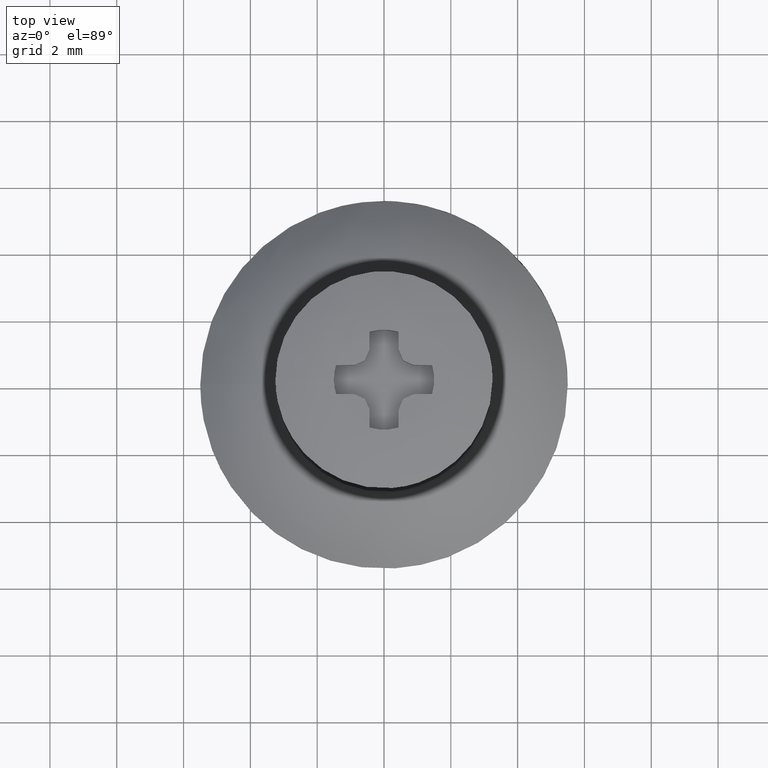
[diagram: clean part render]
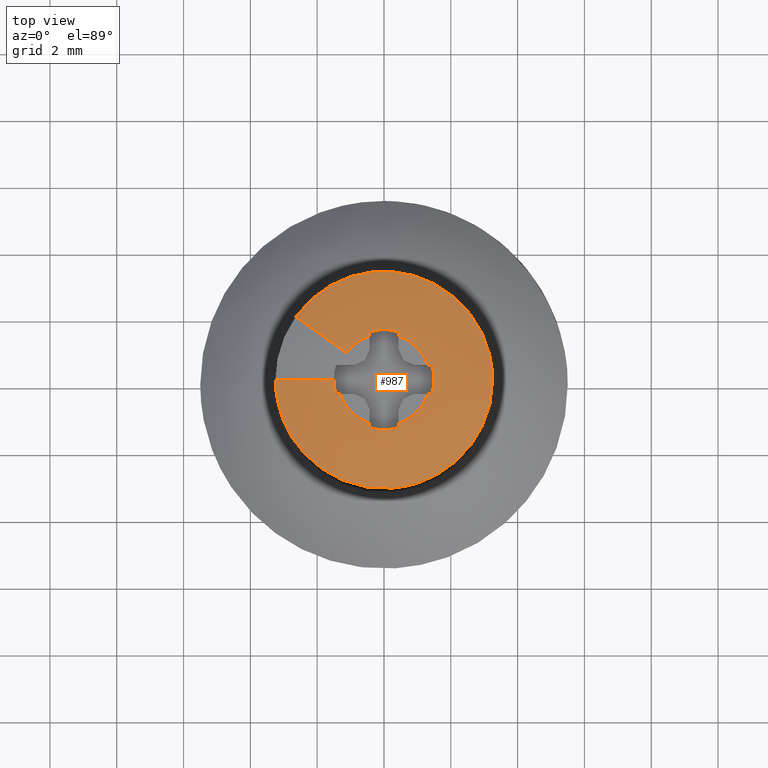
[diagram: same view with one face highlighted and labeled with its STEP entity id]
A machine part, top view. The second image highlights one B-rep face of the part: STEP entity #987.
In plain terms, the highlighted face is a freeform B-spline surface patch.
Its self-contained STEP definition (entity closure, byte-faithful):
#567=CARTESIAN_POINT('',(0.254991999125338,-3.239981299225323,-0.300000069562405));
#568=VERTEX_POINT('',#567);
#574=CARTESIAN_POINT('',(-3.022059282770379,-1.195682701108216,-0.299999985172152));
#575=VERTEX_POINT('',#574);
#576=CARTESIAN_POINT('',(0.254991999125338,-3.239981299225323,-0.300000069562405));
#577=CARTESIAN_POINT('',(0.127692788662780,-3.250000000000000,-0.299999999999983));
#578=CARTESIAN_POINT('',(0.0,-3.250000000000000,-0.299999999999983));
#579=CARTESIAN_POINT('',(-2.209265421854620,-3.250000000000000,-0.299999999999983));
#580=CARTESIAN_POINT('',(-3.022059282770379,-1.195682701108215,-0.299999985172152));
#588=(BOUNDED_CURVE()B_SPLINE_CURVE(2,(#576,#577,#578,#579,#580),.UNSPECIFIED.,.F.,.U.)B_SPLINE_CURVE_WITH_KNOTS((3,2,3),(0.736331306859014,0.750000000000000,0.937532553000254),.UNSPECIFIED.)CURVE()GEOMETRIC_REPRESENTATION_ITEM()RATIONAL_B_SPLINE_CURVE((0.969723369165518,0.983986129875853,1.0,0.780291947677805,0.890203191089167))REPRESENTATION_ITEM(''));
#589=EDGE_CURVE('',#568,#575,#588,.T.);
#641=CARTESIAN_POINT('',(-3.249999728123100,0.0,-0.299999910638386));
#642=VERTEX_POINT('',#641);
#643=CARTESIAN_POINT('',(-3.022059282770379,-1.195682701108216,-0.299999985172152));
#644=CARTESIAN_POINT('',(-3.249999779952727,-0.619568223488835,-0.299999927673957));
#645=CARTESIAN_POINT('',(-3.249999728123100,0.0,-0.299999910638386));
#653=(BOUNDED_CURVE()B_SPLINE_CURVE(2,(#643,#644,#645),.UNSPECIFIED.,.F.,.U.)B_SPLINE_CURVE_WITH_KNOTS((3,3),(0.937532553000254,1.0),.UNSPECIFIED.)CURVE()GEOMETRIC_REPRESENTATION_ITEM()RATIONAL_B_SPLINE_CURVE((0.890203191089167,0.926814833508743,1.0))REPRESENTATION_ITEM(''));
#654=EDGE_CURVE('',#575,#642,#653,.T.);
#656=CARTESIAN_POINT('',(-2.644934617158597,1.888602888644096,-0.300000000001945));
#657=VERTEX_POINT('',#656);
#671=CARTESIAN_POINT('',(3.250000000000000,0.0,-0.299999999999983));
#672=VERTEX_POINT('',#671);
#673=CARTESIAN_POINT('',(-2.644934617158597,1.888602888644096,-0.300000000001945));
#674=CARTESIAN_POINT('',(-1.672835533697993,3.250000000000001,-0.299999999999983));
#675=CARTESIAN_POINT('',(0.0,3.250000000000000,-0.299999999999983));
#676=CARTESIAN_POINT('',(3.250000000000000,3.250000000000000,-0.299999999999983));
#677=CARTESIAN_POINT('',(3.250000000000000,0.0,-0.299999999999983));
#685=(BOUNDED_CURVE()B_SPLINE_CURVE(2,(#673,#674,#675,#676,#677),.UNSPECIFIED.,.F.,.U.)B_SPLINE_CURVE_WITH_KNOTS((3,2,3),(0.100000000001970,0.250000000000000,0.500000000000000),.UNSPECIFIED.)CURVE()GEOMETRIC_REPRESENTATION_ITEM()RATIONAL_B_SPLINE_CURVE((0.859411254968620,0.824264068714236,1.0,0.707106781186547,1.0))REPRESENTATION_ITEM(''));
#686=EDGE_CURVE('',#657,#672,#685,.T.);
#688=CARTESIAN_POINT('',(3.250000000000000,0.0,-0.299999999999983));
#689=CARTESIAN_POINT('',(3.250000000000000,-3.004269207343569,-0.299999999999983));
#690=CARTESIAN_POINT('',(0.254991999125338,-3.239981299225323,-0.300000069562405));
#698=(BOUNDED_CURVE()B_SPLINE_CURVE(2,(#688,#689,#690),.UNSPECIFIED.,.F.,.U.)B_SPLINE_CURVE_WITH_KNOTS((3,3),(0.500000000000000,0.736331306859014),.UNSPECIFIED.)CURVE()GEOMETRIC_REPRESENTATION_ITEM()RATIONAL_B_SPLINE_CURVE((1.0,0.723120651310694,0.969723369165520))REPRESENTATION_ITEM(''));
#699=EDGE_CURVE('',#672,#568,#698,.T.);
#735=CARTESIAN_POINT('',(-2.719263273366485,1.941676949663910,-0.330834625188138));
#736=CARTESIAN_POINT('',(-1.905573627162713,1.360665745015791,0.015689489631601));
#737=CARTESIAN_POINT('',(-1.044503189867627,0.745822512840250,-0.000721612764717));
#738=CARTESIAN_POINT('',(-1.719845994207903,3.341332387945855,-0.330834625188138));
#739=CARTESIAN_POINT('',(-1.205213633208337,2.341499971855100,0.015689489631601));
#740=CARTESIAN_POINT('',(-0.660614455623219,1.283447752852836,-0.000721612764717));
#741=CARTESIAN_POINT('',(0.0,3.341332387945856,-0.330834625188138));
#742=CARTESIAN_POINT('',(0.0,2.341499971855101,0.015689489631602));
#743=CARTESIAN_POINT('',(0.0,1.283447752852835,-0.000721612764717));
#744=CARTESIAN_POINT('',(3.341332387945856,3.341332387945856,-0.330834625188138));
#745=CARTESIAN_POINT('',(2.341499971855101,2.341499971855101,0.015689489631601));
#746=CARTESIAN_POINT('',(1.283447752852836,1.283447752852836,-0.000721612764718));
#747=CARTESIAN_POINT('',(3.341332387945856,0.0,-0.330834625188138));
#748=CARTESIAN_POINT('',(2.341499971855101,0.0,0.015689489631602));
#749=CARTESIAN_POINT('',(1.283447752852835,0.0,-0.000721612764717));
#750=CARTESIAN_POINT('',(3.341332387945856,-3.341332387945856,-0.330834625188138));
#751=CARTESIAN_POINT('',(2.341499971855101,-2.341499971855101,0.015689489631601));
#752=CARTESIAN_POINT('',(1.283447752852836,-1.283447752852836,-0.000721612764718));
#753=CARTESIAN_POINT('',(0.0,-3.341332387945856,-0.330834625188138));
#754=CARTESIAN_POINT('',(0.0,-2.341499971855101,0.015689489631602));
#755=CARTESIAN_POINT('',(0.0,-1.283447752852835,-0.000721612764717));
#756=CARTESIAN_POINT('',(-3.341332387945856,-3.341332387945856,-0.330834625188138));
#757=CARTESIAN_POINT('',(-2.341499971855101,-2.341499971855101,0.015689489631601));
#758=CARTESIAN_POINT('',(-1.283447752852836,-1.283447752852836,-0.000721612764718));
#759=CARTESIAN_POINT('',(-3.341332387945856,0.0,-0.330834625188138));
#760=CARTESIAN_POINT('',(-2.341499971855101,0.0,0.015689489631602));
#761=CARTESIAN_POINT('',(-1.283447752852835,0.0,-0.000721612764717));
#769=(BOUNDED_SURFACE()B_SPLINE_SURFACE(2,2,((#735,#738,#741,#744,#747,#750,#753,#756,#759),(#736,#739,#742,#745,#748,#751,#754,#757,#760),(#737,#740,#743,#746,#749,#752,#755,#758,#761)),.UNSPECIFIED.,.F.,.F.,.U.)B_SPLINE_SURFACE_WITH_KNOTS((3,3),(3,2,2,2,3),(0.0,2.123034379589548),(0.0,3.321660426563037,8.857761192497652,14.393861958432270,19.929962724366881),.UNSPECIFIED.)GEOMETRIC_REPRESENTATION_ITEM()RATIONAL_B_SPLINE_SURFACE(((0.784422160121828,0.752341791483205,0.912743644237016,0.645407220324915,0.912743644237016,0.645407220324915,0.912743644237016,0.645407220324915,0.912743644237016),(0.786896380859817,0.754714824471277,0.915622616004831,0.647442960784782,0.915622616004831,0.647442960784782,0.915622616004831,0.647442960784782,0.915622616004831),(0.813931227812670,0.780644032266508,0.947080019917673,0.669686704410077,0.947080019917673,0.669686704410077,0.947080019917673,0.669686704410077,0.947080019917673)))REPRESENTATION_ITEM('')SURFACE());
#770=CARTESIAN_POINT('',(-1.120232027321515,0.799896310912755,-2.052101E-016));
#771=VERTEX_POINT('',#770);
#772=CARTESIAN_POINT('',(-0.432604818937696,1.306754366265934,0.0));
#773=VERTEX_POINT('',#772);
#774=CARTESIAN_POINT('',(-1.120232027321515,0.799896310912755,-2.052101E-016));
#775=CARTESIAN_POINT('',(-0.859139633923936,1.165548779989596,0.0));
#776=CARTESIAN_POINT('',(-0.432604818937696,1.306754366265934,0.0));
#784=(BOUNDED_CURVE()B_SPLINE_CURVE(2,(#774,#775,#776),.UNSPECIFIED.,.F.,.U.)B_SPLINE_CURVE_WITH_KNOTS((3,3),(0.325338633241159,1.0),.UNSPECIFIED.)CURVE()GEOMETRIC_REPRESENTATION_ITEM()RATIONAL_B_SPLINE_CURVE((0.953250898370830,0.928153165882213,1.0))REPRESENTATION_ITEM(''));
#785=EDGE_CURVE('',#771,#773,#784,.T.);
#786=ORIENTED_EDGE('',*,*,#785,.T.);
#787=CARTESIAN_POINT('',(-0.430332313739177,1.436946101895224,-0.001271143123871));
#788=VERTEX_POINT('',#787);
#789=CARTESIAN_POINT('',(-0.430332313739177,1.436946101895224,-0.001271143123871));
#790=CARTESIAN_POINT('',(-0.431089969030884,1.393540059303572,-0.000419556474608));
#791=CARTESIAN_POINT('',(-0.431847469271500,1.350142899583420,-1.142883E-016));
#792=CARTESIAN_POINT('',(-0.432604818937697,1.306754366265934,-1.111727E-016));
#793=QUASI_UNIFORM_CURVE('',3,(#789,#790,#791,#792),.UNSPECIFIED.,.F.,.U.);
#794=EDGE_CURVE('',#788,#773,#793,.T.);
#795=ORIENTED_EDGE('',*,*,#794,.F.);
#796=CARTESIAN_POINT('',(0.430332313739197,1.436946101895224,-0.001271143123871));
#797=VERTEX_POINT('',#796);
#798=CARTESIAN_POINT('',(-0.430332313739177,1.436946101895224,-0.001271143123871));
#799=CARTESIAN_POINT('',(1.008308E-014,1.565820734008338,-0.001271143123876));
#800=CARTESIAN_POINT('',(0.430332313739197,1.436946101895224,-0.001271143123871));
#808=(BOUNDED_CURVE()B_SPLINE_CURVE(2,(#798,#799,#800),.UNSPECIFIED.,.F.,.U.)CURVE()GEOMETRIC_REPRESENTATION_ITEM()QUASI_UNIFORM_CURVE()RATIONAL_B_SPLINE_CURVE((1.0,0.957964067930149,1.0))REPRESENTATION_ITEM(''));
#809=EDGE_CURVE('',#788,#797,#808,.T.);
#810=ORIENTED_EDGE('',*,*,#809,.T.);
#811=CARTESIAN_POINT('',(0.432604818937737,1.306754366265920,0.0));
#812=VERTEX_POINT('',#811);
#813=CARTESIAN_POINT('',(0.432604818937737,1.306754366265920,-3.301307E-016));
#814=CARTESIAN_POINT('',(0.431847469271537,1.350142899583410,-3.270151E-016));
#815=CARTESIAN_POINT('',(0.431089969030919,1.393540059303567,-0.000419556474608));
#816=CARTESIAN_POINT('',(0.430332313739197,1.436946101895224,-0.001271143123871));
#817=QUASI_UNIFORM_CURVE('',3,(#813,#814,#815,#816),.UNSPECIFIED.,.F.,.U.);
#818=EDGE_CURVE('',#812,#797,#817,.T.);
#819=ORIENTED_EDGE('',*,*,#818,.F.);
#820=CARTESIAN_POINT('',(1.306754366265966,0.432604818937595,0.0));
#821=VERTEX_POINT('',#820);
#822=CARTESIAN_POINT('',(0.432604818937737,1.306754366265921,0.0));
#823=CARTESIAN_POINT('',(1.089340211752469,1.089340211752351,0.0));
#824=CARTESIAN_POINT('',(1.306754366265967,0.432604818937595,0.0));
#832=(BOUNDED_CURVE()B_SPLINE_CURVE(2,(#822,#823,#824),.UNSPECIFIED.,.F.,.U.)CURVE()GEOMETRIC_REPRESENTATION_ITEM()QUASI_UNIFORM_CURVE()RATIONAL_B_SPLINE_CURVE((1.0,0.893506820372794,1.0))REPRESENTATION_ITEM(''));
#833=EDGE_CURVE('',#812,#821,#832,.T.);
#834=ORIENTED_EDGE('',*,*,#833,.T.);
#835=CARTESIAN_POINT('',(1.436946101895210,0.430332313739101,-0.001271143123871));
#836=VERTEX_POINT('',#835);
#837=CARTESIAN_POINT('',(1.436946101895210,0.430332313739101,-0.001271143123871));
#838=CARTESIAN_POINT('',(1.393540059303573,0.431089969030804,-0.000419556474609));
#839=CARTESIAN_POINT('',(1.350142899583436,0.431847469271409,-2.067114E-016));
#840=CARTESIAN_POINT('',(1.306754366265966,0.432604818937595,-2.145107E-016));
#841=QUASI_UNIFORM_CURVE('',3,(#837,#838,#839,#840),.UNSPECIFIED.,.F.,.U.);
#842=EDGE_CURVE('',#836,#821,#841,.T.);
#843=ORIENTED_EDGE('',*,*,#842,.F.);
#844=CARTESIAN_POINT('',(1.436946101895156,-0.430332313739443,-0.001271143123871));
#845=VERTEX_POINT('',#844);
#846=CARTESIAN_POINT('',(1.436946101895210,0.430332313739101,-0.001271143123871));
#847=CARTESIAN_POINT('',(1.565820734008368,-1.792728E-013,-0.001271143123876));
#848=CARTESIAN_POINT('',(1.436946101895156,-0.430332313739443,-0.001271143123871));
#856=(BOUNDED_CURVE()B_SPLINE_CURVE(2,(#846,#847,#848),.UNSPECIFIED.,.F.,.U.)CURVE()GEOMETRIC_REPRESENTATION_ITEM()QUASI_UNIFORM_CURVE()RATIONAL_B_SPLINE_CURVE((1.0,0.957964067930131,1.0))REPRESENTATION_ITEM(''));
#857=EDGE_CURVE('',#836,#845,#856,.T.);
#858=ORIENTED_EDGE('',*,*,#857,.T.);
#859=CARTESIAN_POINT('',(1.306754366265894,-0.432604818937817,0.0));
#860=VERTEX_POINT('',#859);
#861=CARTESIAN_POINT('',(1.306754366265894,-0.432604818937818,-4.103871E-016));
#862=CARTESIAN_POINT('',(1.350142899583370,-0.431847469271624,-4.135095E-016));
#863=CARTESIAN_POINT('',(1.393540059303511,-0.431089969031012,-0.000419556474608));
#864=CARTESIAN_POINT('',(1.436946101895156,-0.430332313739443,-0.001271143123871));
#865=QUASI_UNIFORM_CURVE('',3,(#861,#862,#863,#864),.UNSPECIFIED.,.F.,.U.);
#866=EDGE_CURVE('',#860,#845,#865,.T.);
#867=ORIENTED_EDGE('',*,*,#866,.F.);
#868=CARTESIAN_POINT('',(0.432604818937582,-1.306754366265972,0.0));
#869=VERTEX_POINT('',#868);
#870=CARTESIAN_POINT('',(1.306754366265894,-0.432604818937817,0.0));
#871=CARTESIAN_POINT('',(1.089340211752298,-1.089340211752494,0.0));
#872=CARTESIAN_POINT('',(0.432604818937582,-1.306754366265972,0.0));
#880=(BOUNDED_CURVE()B_SPLINE_CURVE(2,(#870,#871,#872),.UNSPECIFIED.,.F.,.U.)CURVE()GEOMETRIC_REPRESENTATION_ITEM()QUASI_UNIFORM_CURVE()RATIONAL_B_SPLINE_CURVE((1.0,0.893506820372806,1.0))REPRESENTATION_ITEM(''));
#881=EDGE_CURVE('',#860,#869,#880,.T.);
#882=ORIENTED_EDGE('',*,*,#881,.T.);
#883=CARTESIAN_POINT('',(0.430332313739062,-1.436946101895302,-0.001271143123871));
#884=VERTEX_POINT('',#883);
#885=CARTESIAN_POINT('',(0.430332313739061,-1.436946101895302,-0.001271143123869));
#886=CARTESIAN_POINT('',(0.431089969030773,-1.393540059303636,-0.000419556474609));
#887=CARTESIAN_POINT('',(0.431847469271387,-1.350142899583471,4.997534E-017));
#888=CARTESIAN_POINT('',(0.432604818937581,-1.306754366265972,4.997534E-017));
#889=QUASI_UNIFORM_CURVE('',3,(#885,#886,#887,#888),.UNSPECIFIED.,.F.,.U.);
#890=EDGE_CURVE('',#884,#869,#889,.T.);
#891=ORIENTED_EDGE('',*,*,#890,.F.);
#892=CARTESIAN_POINT('',(-0.430332313739346,-1.436946101895172,-0.001271143123871));
#893=VERTEX_POINT('',#892);
#894=CARTESIAN_POINT('',(0.430332313739062,-1.436946101895302,-0.001271143123871));
#895=CARTESIAN_POINT('',(-1.611124E-013,-1.565820734008342,-0.001271143123876));
#896=CARTESIAN_POINT('',(-0.430332313739346,-1.436946101895172,-0.001271143123871));
#904=(BOUNDED_CURVE()B_SPLINE_CURVE(2,(#894,#895,#896),.UNSPECIFIED.,.F.,.U.)CURVE()GEOMETRIC_REPRESENTATION_ITEM()QUASI_UNIFORM_CURVE()RATIONAL_B_SPLINE_CURVE((1.0,0.957964067930147,1.0))REPRESENTATION_ITEM(''));
#905=EDGE_CURVE('',#884,#893,#904,.T.);
#906=ORIENTED_EDGE('',*,*,#905,.T.);
#907=CARTESIAN_POINT('',(-0.432604818937695,-1.306754366265934,0.0));
#908=VERTEX_POINT('',#907);
#909=CARTESIAN_POINT('',(-0.432604818937695,-1.306754366265934,-6.670345E-017));
#910=CARTESIAN_POINT('',(-0.431847469271498,-1.350142899583401,-6.514222E-017));
#911=CARTESIAN_POINT('',(-0.431089969030883,-1.393540059303535,-0.000419556474609));
#912=CARTESIAN_POINT('',(-0.430332313739346,-1.436946101895172,-0.001271143123871));
#913=QUASI_UNIFORM_CURVE('',3,(#909,#910,#911,#912),.UNSPECIFIED.,.F.,.U.);
#914=EDGE_CURVE('',#908,#893,#913,.T.);
#915=ORIENTED_EDGE('',*,*,#914,.F.);
#916=CARTESIAN_POINT('',(-1.306754366265968,-0.432604818937596,0.0));
#917=VERTEX_POINT('',#916);
#918=CARTESIAN_POINT('',(-0.432604818937695,-1.306754366265934,0.0));
#919=CARTESIAN_POINT('',(-1.089340211752460,-1.089340211752377,0.0));
#920=CARTESIAN_POINT('',(-1.306754366265967,-0.432604818937596,0.0));
#928=(BOUNDED_CURVE()B_SPLINE_CURVE(2,(#918,#919,#920),.UNSPECIFIED.,.F.,.U.)CURVE()GEOMETRIC_REPRESENTATION_ITEM()QUASI_UNIFORM_CURVE()RATIONAL_B_SPLINE_CURVE((1.0,0.893506820372787,1.0))REPRESENTATION_ITEM(''));
#929=EDGE_CURVE('',#908,#917,#928,.T.);
#930=ORIENTED_EDGE('',*,*,#929,.T.);
#931=CARTESIAN_POINT('',(-1.436946101895280,-0.430332313739101,-0.001271143123871));
#932=VERTEX_POINT('',#931);
#933=CARTESIAN_POINT('',(-1.436946101895280,-0.430332313739101,-0.001271143123869));
#934=CARTESIAN_POINT('',(-1.393540059303621,-0.431089969030804,-0.000419556474609));
#935=CARTESIAN_POINT('',(-1.350142899583461,-0.431847469271410,-8.698961E-017));
#936=CARTESIAN_POINT('',(-1.306754366265968,-0.432604818937596,-7.919718E-017));
#937=QUASI_UNIFORM_CURVE('',3,(#933,#934,#935,#936),.UNSPECIFIED.,.F.,.U.);
#938=EDGE_CURVE('',#932,#917,#937,.T.);
#939=ORIENTED_EDGE('',*,*,#938,.F.);
#940=CARTESIAN_POINT('',(-1.500000000051368,-1.440121E-017,-0.001271143124934));
#941=VERTEX_POINT('',#940);
#942=CARTESIAN_POINT('',(-1.436946101895280,-0.430332313739101,-0.001271143123871));
#943=CARTESIAN_POINT('',(-1.500000000000000,-0.219785603212837,-0.001271143123876));
#944=CARTESIAN_POINT('',(-1.500000000051368,-1.440121E-017,-0.001271143124934));
#952=(BOUNDED_CURVE()B_SPLINE_CURVE(2,(#942,#943,#944),.UNSPECIFIED.,.F.,.U.)B_SPLINE_CURVE_WITH_KNOTS((3,3),(0.0,0.500000000000000),.UNSPECIFIED.)CURVE()GEOMETRIC_REPRESENTATION_ITEM()RATIONAL_B_SPLINE_CURVE((1.0,0.978982033965084,0.978982033965084))REPRESENTATION_ITEM(''));
#953=EDGE_CURVE('',#932,#941,#952,.T.);
#954=ORIENTED_EDGE('',*,*,#953,.T.);
#955=CARTESIAN_POINT('',(-3.249999728123100,0.0,-0.299999910638386));
#956=CARTESIAN_POINT('',(-2.397342968312255,0.0,-0.019745276642149));
#957=CARTESIAN_POINT('',(-1.500000000051367,-1.440121E-017,-0.001271143124934));
#965=(BOUNDED_CURVE()B_SPLINE_CURVE(2,(#955,#956,#957),.UNSPECIFIED.,.F.,.U.)B_SPLINE_CURVE_WITH_KNOTS((3,3),(0.847250669682235,0.928105945868296),.UNSPECIFIED.)CURVE()GEOMETRIC_REPRESENTATION_ITEM()RATIONAL_B_SPLINE_CURVE((0.913064072588933,0.916610615254554,0.940761437327206))REPRESENTATION_ITEM(''));
#966=EDGE_CURVE('',#642,#941,#965,.T.);
#967=ORIENTED_EDGE('',*,*,#966,.F.);
#968=ORIENTED_EDGE('',*,*,#654,.F.);
#969=ORIENTED_EDGE('',*,*,#589,.F.);
#970=ORIENTED_EDGE('',*,*,#699,.F.);
#971=ORIENTED_EDGE('',*,*,#686,.F.);
#972=CARTESIAN_POINT('',(-2.644934617158598,1.888602888644096,-0.300000000001945));
#973=CARTESIAN_POINT('',(-1.902130791380572,1.358207376403956,-1.459970E-011));
#974=CARTESIAN_POINT('',(-1.120232027321515,0.799896310912755,-2.052101E-016));
#982=(BOUNDED_CURVE()B_SPLINE_CURVE(2,(#972,#973,#974),.UNSPECIFIED.,.F.,.U.)B_SPLINE_CURVE_WITH_KNOTS((3,3),(0.847250644000021,0.933826280270874),.UNSPECIFIED.)CURVE()GEOMETRIC_REPRESENTATION_ITEM()RATIONAL_B_SPLINE_CURVE((0.784697538555014,0.787961107196477,0.811526409298887))REPRESENTATION_ITEM(''));
#983=EDGE_CURVE('',#657,#771,#982,.T.);
#984=ORIENTED_EDGE('',*,*,#983,.T.);
#985=EDGE_LOOP('',(#786,#795,#810,#819,#834,#843,#858,#867,#882,#891,#906,#915,#930,#939,#954,#967,#968,#969,#970,#971,#984));
#986=FACE_OUTER_BOUND('',#985,.T.);
#987=ADVANCED_FACE('',(#986),#769,.T.);